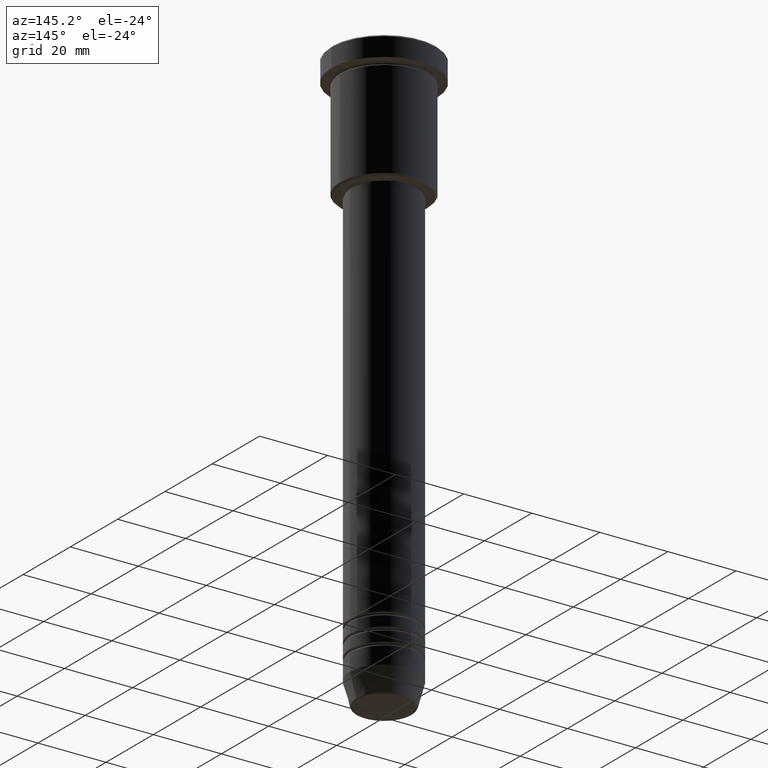
[diagram: clean part render]
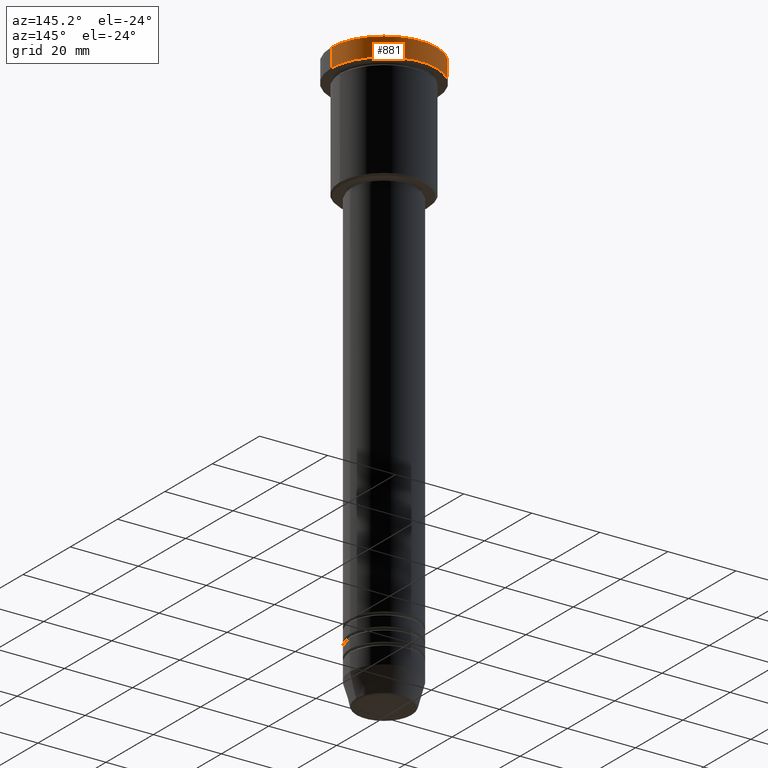
[diagram: same view with one face highlighted and labeled with its STEP entity id]
A machine part, auxiliary view. The second image highlights one B-rep face of the part: STEP entity #881.
In plain terms, the highlighted cylindrical surface (partial cylindrical patch) has radius 15.5 mm, axis along (-0, -0, 1).
Its self-contained STEP definition (entity closure, byte-faithful):
#33 = FACE_OUTER_BOUND ( 'NONE', #93, .T. ) ;
#53 = CARTESIAN_POINT ( 'NONE',  ( 0.000000000000000000, 0.000000000000000000, -0.4999999999999848455 ) ) ;
#77 = DIRECTION ( 'NONE',  ( -0.000000000000000000, -0.000000000000000000, 1.000000000000000000 ) ) ;
#93 = EDGE_LOOP ( 'NONE', ( #1003, #107, #396, #901 ) ) ;
#104 = EDGE_CURVE ( 'NONE', #225, #1120, #568, .T. ) ;
#107 = ORIENTED_EDGE ( 'NONE', *, *, #587, .T. ) ;
#114 = CARTESIAN_POINT ( 'NONE',  ( 0.000000000000000000, 0.000000000000000000, -5.999999999999995559 ) ) ;
#154 = EDGE_CURVE ( 'NONE', #537, #1120, #412, .T. ) ;
#219 = CARTESIAN_POINT ( 'NONE',  ( 0.000000000000000000, 0.000000000000000000, 0.000000000000000000 ) ) ;
#220 = VECTOR ( 'NONE', #774, 1000.000000000000000 ) ;
#225 = VERTEX_POINT ( 'NONE', #1100 ) ;
#230 = DIRECTION ( 'NONE',  ( 0.000000000000000000, 0.000000000000000000, -1.000000000000000000 ) ) ;
#317 = AXIS2_PLACEMENT_3D ( 'NONE', #114, #933, #549 ) ;
#368 = EDGE_CURVE ( 'NONE', #537, #659, #681, .T. ) ;
#392 = DIRECTION ( 'NONE',  ( 1.000000000000000000, 0.000000000000000000, 0.000000000000000000 ) ) ;
#396 = ORIENTED_EDGE ( 'NONE', *, *, #104, .T. ) ;
#403 = AXIS2_PLACEMENT_3D ( 'NONE', #219, #582, #392 ) ;
#412 = LINE ( 'NONE', #515, #220 ) ;
#439 = CARTESIAN_POINT ( 'NONE',  ( 15.50000000000000000, 0.000000000000000000, -5.999999999999995559 ) ) ;
#459 = AXIS2_PLACEMENT_3D ( 'NONE', #53, #230, #974 ) ;
#515 = CARTESIAN_POINT ( 'NONE',  ( 15.50000000000000000, 0.000000000000000000, 0.000000000000000000 ) ) ;
#537 = VERTEX_POINT ( 'NONE', #439 ) ;
#538 = CARTESIAN_POINT ( 'NONE',  ( -15.50000000000000000, 1.898202538678397557E-15, -5.999999999999995559 ) ) ;
#549 = DIRECTION ( 'NONE',  ( 1.000000000000000000, 0.000000000000000000, 0.000000000000000000 ) ) ;
#568 = CIRCLE ( 'NONE', #459, 15.50000000000000000 ) ;
#570 = VECTOR ( 'NONE', #77, 1000.000000000000000 ) ;
#582 = DIRECTION ( 'NONE',  ( -0.000000000000000000, -0.000000000000000000, 1.000000000000000000 ) ) ;
#587 = EDGE_CURVE ( 'NONE', #659, #225, #899, .T. ) ;
#602 = CARTESIAN_POINT ( 'NONE',  ( -15.50000000000000000, 1.898202538678397557E-15, 0.000000000000000000 ) ) ;
#659 = VERTEX_POINT ( 'NONE', #538 ) ;
#674 = CYLINDRICAL_SURFACE ( 'NONE', #403, 15.50000000000000000 ) ;
#681 = CIRCLE ( 'NONE', #317, 15.50000000000000000 ) ;
#774 = DIRECTION ( 'NONE',  ( -0.000000000000000000, -0.000000000000000000, 1.000000000000000000 ) ) ;
#821 = CARTESIAN_POINT ( 'NONE',  ( 15.50000000000000000, 0.000000000000000000, -0.4999999999999848455 ) ) ;
#881 = ADVANCED_FACE ( 'NONE', ( #33 ), #674, .T. ) ;
#899 = LINE ( 'NONE', #602, #570 ) ;
#901 = ORIENTED_EDGE ( 'NONE', *, *, #154, .F. ) ;
#933 = DIRECTION ( 'NONE',  ( -0.000000000000000000, -0.000000000000000000, 1.000000000000000000 ) ) ;
#974 = DIRECTION ( 'NONE',  ( 1.000000000000000000, 0.000000000000000000, 0.000000000000000000 ) ) ;
#1003 = ORIENTED_EDGE ( 'NONE', *, *, #368, .T. ) ;
#1100 = CARTESIAN_POINT ( 'NONE',  ( -15.50000000000000000, 1.898202538678397557E-15, -0.4999999999999848455 ) ) ;
#1120 = VERTEX_POINT ( 'NONE', #821 ) ;